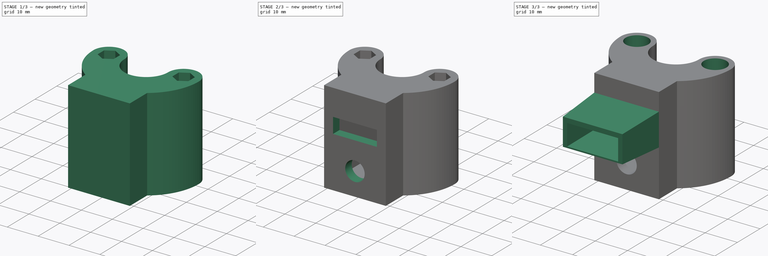
[diagram: build sequence overview — one tinted view per stage of 3, left to right]
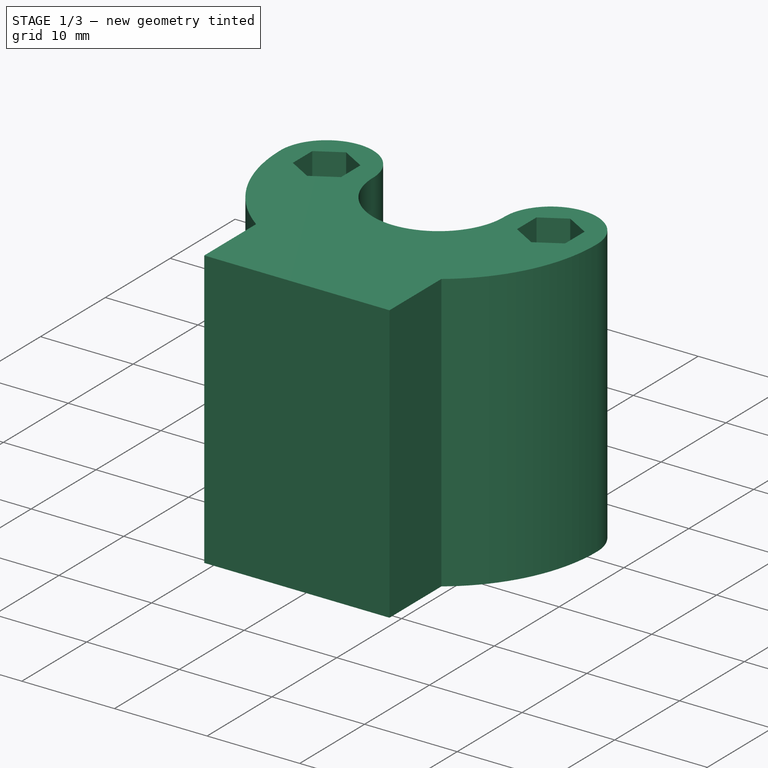
[diagram: stage 1 of 3 — iso view after this stage's code; geometry added in this stage tinted green]
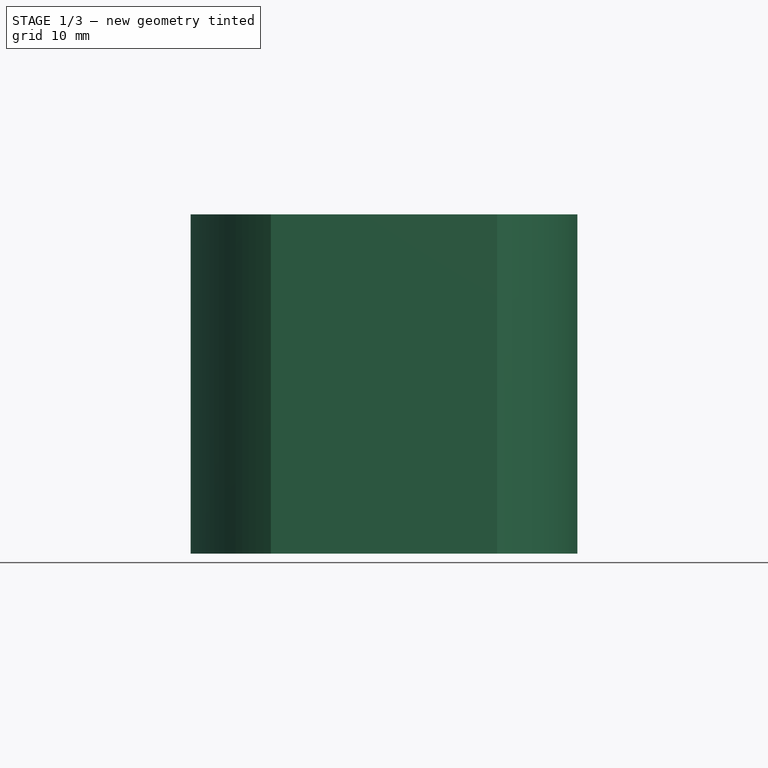
[diagram: stage 1 of 3 — front view after this stage's code; geometry added in this stage tinted green]
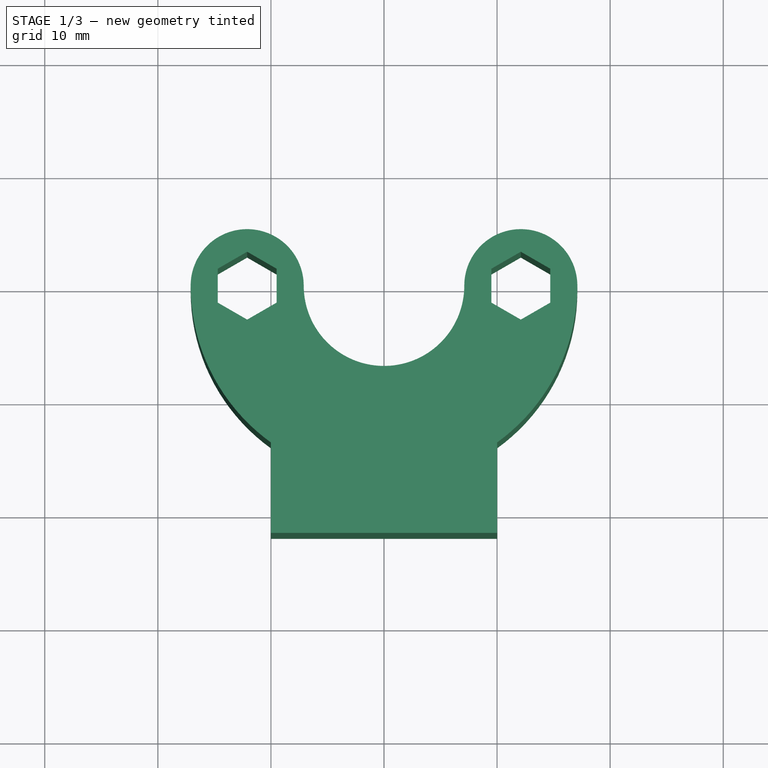
[diagram: stage 1 of 3 — top view after this stage's code; geometry added in this stage tinted green]
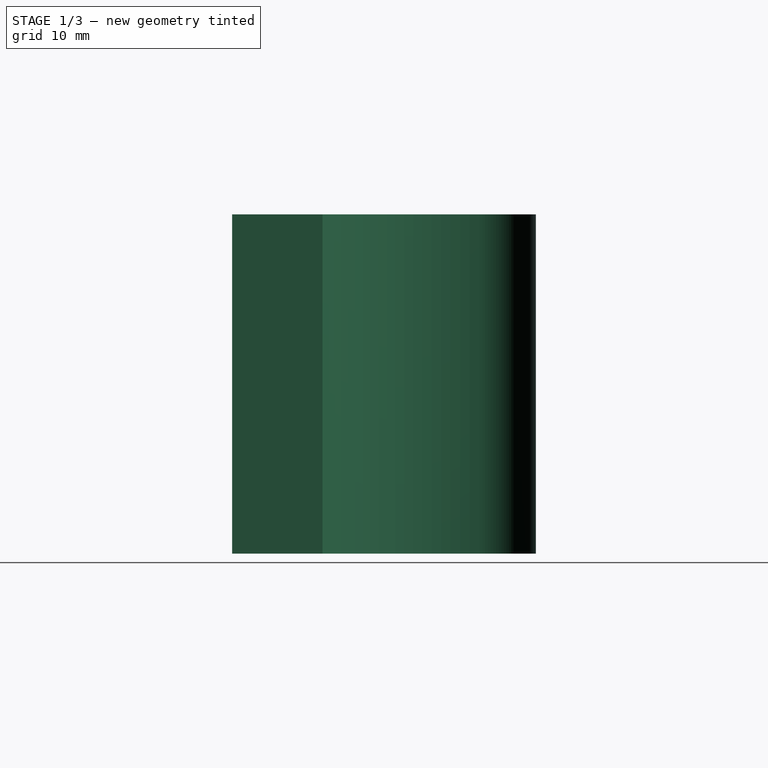
[diagram: stage 1 of 3 — right view after this stage's code; geometry added in this stage tinted green]
FCSTD DOCUMENT  (FreeCAD 0.20R29177 (Git))
Label: antenna_holder
License: All rights reserved
LicenseURL: http://en.wikipedia.org/wiki/All_rights_reserved
objects: Sketcher::SketchObject×6, PartDesign::Pocket×4, PartDesign::Pad×2, PartDesign::Plane×1, PartDesign::Body×1
note: 20 computed .brp shape members not serialized (recipe doc carries the construction recipe); baked Part::Feature solids carry a one-line shape summary decoded from their .brp

FEATURE [Sketcher::SketchObject] Sketch
  FullyConstrained = true
  MapMode = 5
  Support = -> [XY_Plane]
  sketch-geometry (22):
    g0: LineSegment StartX=-9.5 StartY=-1.50111 StartZ=0 EndX=-9.5 EndY=1.50111 EndZ=0
    g1: LineSegment StartX=-9.5 StartY=1.50111 StartZ=0 EndX=-12.1 EndY=3.00222 EndZ=0
    g2: LineSegment StartX=-12.1 StartY=3.00222 StartZ=0 EndX=-14.7 EndY=1.50111 EndZ=0
    g3: LineSegment StartX=-14.7 StartY=1.50111 StartZ=0 EndX=-14.7 EndY=-1.50111 EndZ=0
    g4: LineSegment StartX=-14.7 StartY=-1.50111 StartZ=0 EndX=-12.1 EndY=-3.00222 EndZ=0
    g5: LineSegment StartX=-12.1 StartY=-3.00222 StartZ=0 EndX=-9.5 EndY=-1.50111 EndZ=0
    g6: Circle CenterX=-12.1 CenterY=0 CenterZ=0 NormalX=0 NormalY=0 NormalZ=1 AngleXU=0 Radius=3.00222
    g7: LineSegment StartX=14.7 StartY=-1.50111 StartZ=0 EndX=14.7 EndY=1.50111 EndZ=0
    g8: LineSegment StartX=14.7 StartY=1.50111 StartZ=0 EndX=12.1 EndY=3.00222 EndZ=0
    g9: LineSegment StartX=12.1 StartY=3.00222 StartZ=0 EndX=9.5 EndY=1.50111 EndZ=0
    g10: LineSegment StartX=9.5 StartY=1.50111 StartZ=0 EndX=9.5 EndY=-1.50111 EndZ=0
    g11: LineSegment StartX=9.5 StartY=-1.50111 StartZ=0 EndX=12.1 EndY=-3.00222 EndZ=0
    g12: LineSegment StartX=12.1 StartY=-3.00222 StartZ=0 EndX=14.7 EndY=-1.50111 EndZ=0
    g13: Circle CenterX=12.1 CenterY=0 CenterZ=0 NormalX=0 NormalY=0 NormalZ=1 AngleXU=0 Radius=3.00222
    g14: ArcOfCircle CenterX=-12.1 CenterY=0 CenterZ=0 NormalX=0 NormalY=0 NormalZ=1 AngleXU=0 Radius=5 StartAngle=0 EndAngle=3.14159
    g15: ArcOfCircle CenterX=12.1 CenterY=0 CenterZ=0 NormalX=0 NormalY=0 NormalZ=1 AngleXU=0 Radius=5 StartAngle=0 EndAngle=3.14159
    g16: ArcOfCircle CenterX=0 CenterY=0 CenterZ=0 NormalX=0 NormalY=0 NormalZ=1 AngleXU=0 Radius=17.1 StartAngle=3.14159 EndAngle=4.08776
    g17: ArcOfCircle CenterX=0 CenterY=0 CenterZ=0 NormalX=0 NormalY=0 NormalZ=1 AngleXU=0 Radius=17.1 StartAngle=5.33702 EndAngle=6.28319
    g18: LineSegment StartX=-10 StartY=-13.8712 StartZ=0 EndX=-10 EndY=-21.8712 EndZ=0
    g19: LineSegment StartX=10 StartY=-13.8712 StartZ=0 EndX=10 EndY=-21.8712 EndZ=0
    g20: LineSegment StartX=-10 StartY=-21.8712 StartZ=0 EndX=10 EndY=-21.8712 EndZ=0
    g21: ArcOfCircle CenterX=0 CenterY=0 CenterZ=0 NormalX=0 NormalY=0 NormalZ=1 AngleXU=0 Radius=7.1 StartAngle=3.14159 EndAngle=6.28319
  constraints (57):
    c: Coincident(g0,g1)
    c: Coincident(g1,g2)
    c: Coincident(g2,g3)
    c: Coincident(g3,g4)
    c: Coincident(g4,g5)
    c: Coincident(g5,g0)
    c: Equal(g0, g1-g5) x5
    c: PointOnObject(g0,g6)
    c: PointOnObject(g1,g6)
    c: PointOnObject(g2,g6)
    c: PointOnObject(g3,g6)
    c: PointOnObject(g4,g6)
    c: PointOnObject(g5,g6)
    c: PointOnObject(g6,g-1)
    c: Coincident(g7,g8)
    c: Coincident(g8,g9)
    c: Coincident(g9,g10)
    c: Coincident(g10,g11)
    c: Coincident(g11,g12)
    c: Coincident(g12,g7)
    c: Equal(g7, g8-g12) x5
    c: PointOnObject(g7,g13)
    c: PointOnObject(g8,g13)
    c: PointOnObject(g9,g13)
    c: PointOnObject(g10,g13)
    c: PointOnObject(g11,g13)
    c: PointOnObject(g12,g13)
    c: Vertical(g10)
    c: Vertical(g0)
    c: Equal(g0,g10)
    c: DistanceX(g2,g0) = 5.2
    c: DistanceX(g6,g13) = 24.2
    c: Symmetric(g6,g13,g-2)
    c: Coincident(g14,g6)
    c: PointOnObject(g14,g-1)
    c: PointOnObject(g14,g-1)
    c: Coincident(g15,g13)
    c: PointOnObject(g15,g-1)
    c: PointOnObject(g15,g-1)
    c: Radius(g15) = 5
    c: Coincident(g16,g-1)
    c: Coincident(g16,g14)
    c: Coincident(g17,g16)
    c: Coincident(g17,g15)
    c: Symmetric(g16,g17,g-2)
    c: Coincident(g18,g16)
    c: Vertical(g18)
    c: Coincident(g19,g17)
    c: Vertical(g19)
    c: Coincident(g20,g18)
    c: Coincident(g20,g19)
    c: Horizontal(g20)
    c: DistanceX(g20,g20) = 20
    c: DistanceY(g19,g19) = 8
    c: Coincident(g21,g16)
    c: Coincident(g21,g14)
    c: Coincident(g21,g15)
FEATURE [PartDesign::Pad] Pad
  Direction = (0,0,1)
  Length = 30
  Length2 = 10
  Profile = -> Sketch
  ReferenceAxis = -> Sketch [N_Axis]
  Type = 0
FEATURE [PartDesign::Plane] DatumPlane
  AttachmentOffset = pos=(0,0,-22) rot=(0,0,1;0rad)
  Length = 60.4881
  MapMode = 5
  Placement = pos=(0,0.128807,-4.9e-15) rot=(1,0,0;1.5708rad)
  ResizeMode = 0
  Support = -> [Pad]
  Width = 65.4881
FEATURE [Sketcher::SketchObject] Sketch001
  ExternalGeometry = -> [Pad]
  FullyConstrained = true
  MapMode = 5
  Placement = pos=(0,0.128807,-4.9e-15) rot=(1,0,0;1.5708rad)
  Support = -> [DatumPlane]
  sketch-geometry (4):
    g0: LineSegment StartX=7.1 StartY=27 StartZ=0 EndX=-7.1 EndY=27 EndZ=0
    g1: LineSegment StartX=-7.1 StartY=27 StartZ=0 EndX=-7.1 EndY=3 EndZ=0
    g2: LineSegment StartX=-7.1 StartY=3 StartZ=0 EndX=7.1 EndY=3 EndZ=0
    g3: LineSegment StartX=7.1 StartY=3 StartZ=0 EndX=7.1 EndY=27 EndZ=0
  constraints (12):
    c: Coincident(g0,g1)
    c: Coincident(g1,g2)
    c: Coincident(g2,g3)
    c: Coincident(g3,g0)
    c: Horizontal(g0)
    c: Horizontal(g2)
    c: Vertical(g1)
    c: Vertical(g3)
    c: PointOnObject(g0,g-3)
    c: PointOnObject(g0,g-4)
    c: DistanceY(g-3,g1) = 3
    c: DistanceY(g0,g-3) = 3
FEATURE [PartDesign::Pocket] Pocket
  BaseFeature = -> Pad
  Direction = (0,1,-2e-16)
  Length = 19
  Length2 = 5
  Profile = -> Sketch001
  ReferenceAxis = -> Sketch001 [N_Axis]
  Reversed = true
  Type = 0
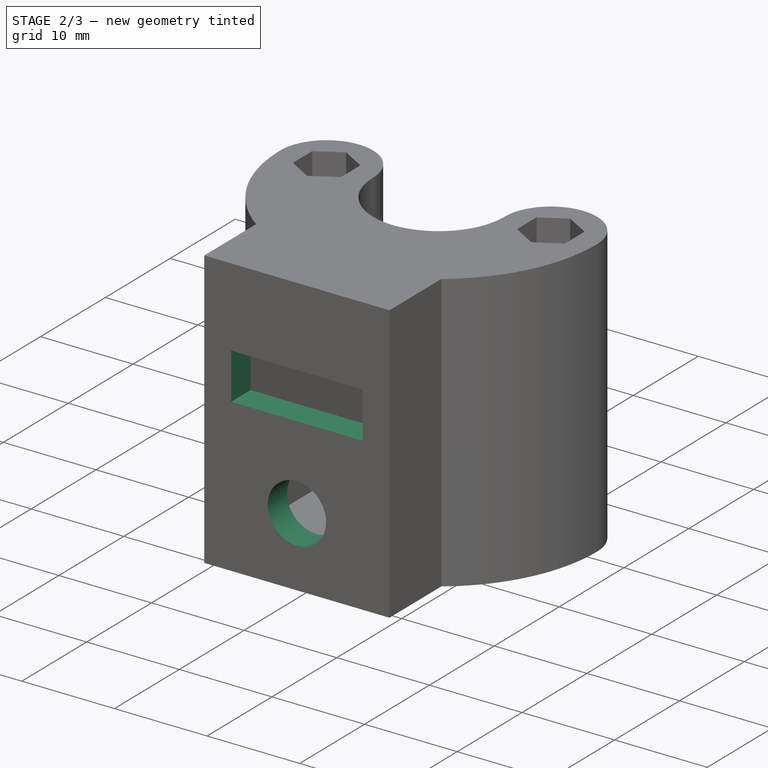
[diagram: stage 2 of 3 — iso view after this stage's code; geometry added in this stage tinted green]
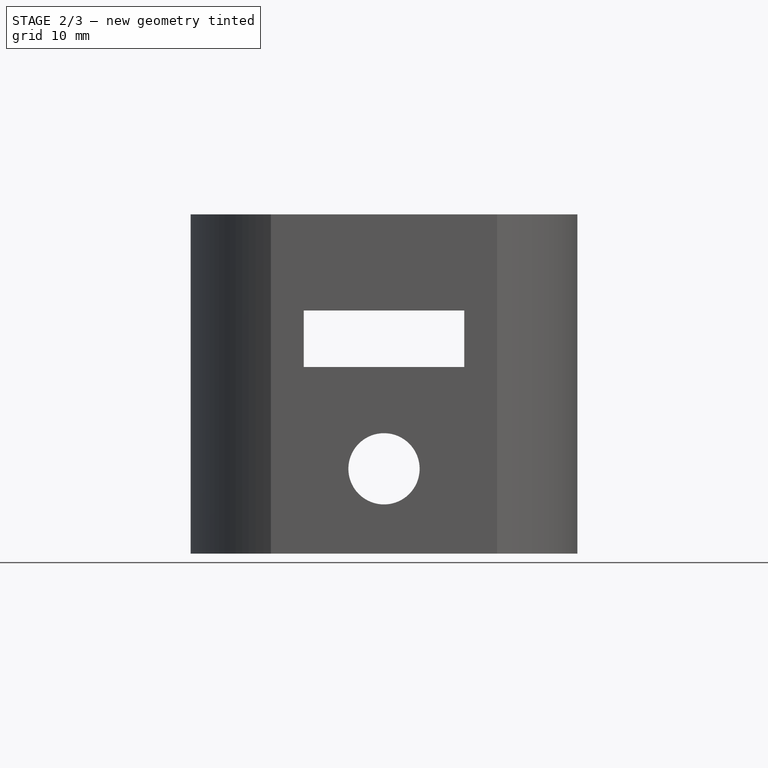
[diagram: stage 2 of 3 — front view after this stage's code; geometry added in this stage tinted green]
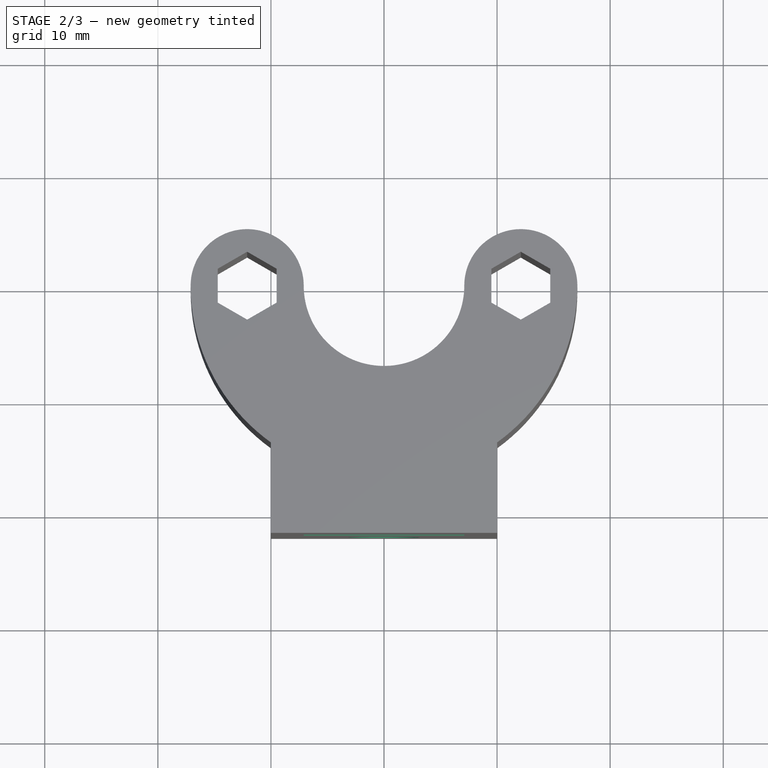
[diagram: stage 2 of 3 — top view after this stage's code; geometry added in this stage tinted green]
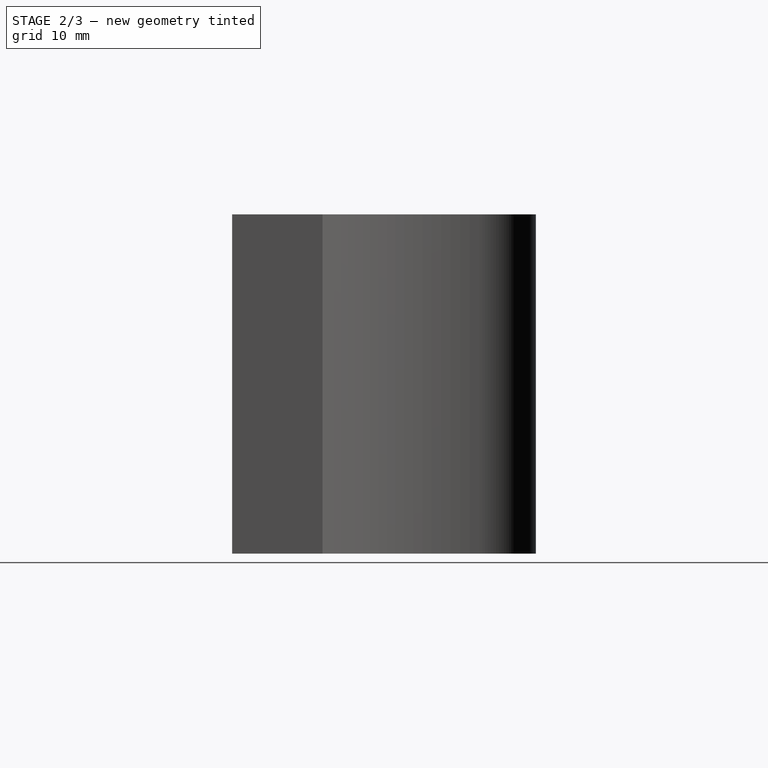
[diagram: stage 2 of 3 — right view after this stage's code; geometry added in this stage tinted green]
FEATURE [Sketcher::SketchObject] Sketch002
  FullyConstrained = true
  MapMode = 5
  Placement = pos=(0,-21.8712,0) rot=(1,0,0;1.5708rad)
  Support = -> [Pocket]
  sketch-geometry (1):
    g0: Circle CenterX=0 CenterY=7.5 CenterZ=0 NormalX=0 NormalY=0 NormalZ=1 AngleXU=0 Radius=3.15
  constraints (3):
    c: PointOnObject(g0,g-2)
    c: Diameter(g0) = 6.3
    c: DistanceY(g-1,g0) = 7.5
FEATURE [PartDesign::Pocket] Pocket001
  BaseFeature = -> Pocket
  Direction = (0,1,-2e-16)
  Length = 5
  Length2 = 5
  Profile = -> Sketch002
  ReferenceAxis = -> Sketch002 [N_Axis]
  Type = 0
FEATURE [Sketcher::SketchObject] Sketch003
  ExternalGeometry = -> [Pocket001]
  FullyConstrained = true
  MapMode = 5
  Placement = pos=(0,-18.8712,4.2e-15) rot=(0,0.707107,0.707107;3.14159rad)
  Support = -> [Pocket001]
  sketch-geometry (4):
    g0: LineSegment StartX=-7.1 StartY=21.5 StartZ=0 EndX=7.1 EndY=21.5 EndZ=0
    g1: LineSegment StartX=7.1 StartY=21.5 StartZ=0 EndX=7.1 EndY=16.5 EndZ=0
    g2: LineSegment StartX=7.1 StartY=16.5 StartZ=0 EndX=-7.1 EndY=16.5 EndZ=0
    g3: LineSegment StartX=-7.1 StartY=16.5 StartZ=0 EndX=-7.1 EndY=21.5 EndZ=0
  constraints (11):
    c: Coincident(g0,g1)
    c: Coincident(g1,g2)
    c: Coincident(g2,g3)
    c: Coincident(g3,g0)
    c: Horizontal(g0)
    c: Vertical(g1)
    c: Vertical(g3)
    c: Symmetric(g2,g1,g-2)
    c: PointOnObject(g0,g-3)
    c: DistanceY(g1,g1) = 5
    c: DistanceY(g0,g-4) = 5.5
FEATURE [PartDesign::Pocket] Pocket002
  BaseFeature = -> Pocket001
  Direction = (0,-1,2e-16)
  Length = 5
  Length2 = 5
  Profile = -> Sketch003
  ReferenceAxis = -> Sketch003 [N_Axis]
  Type = 0
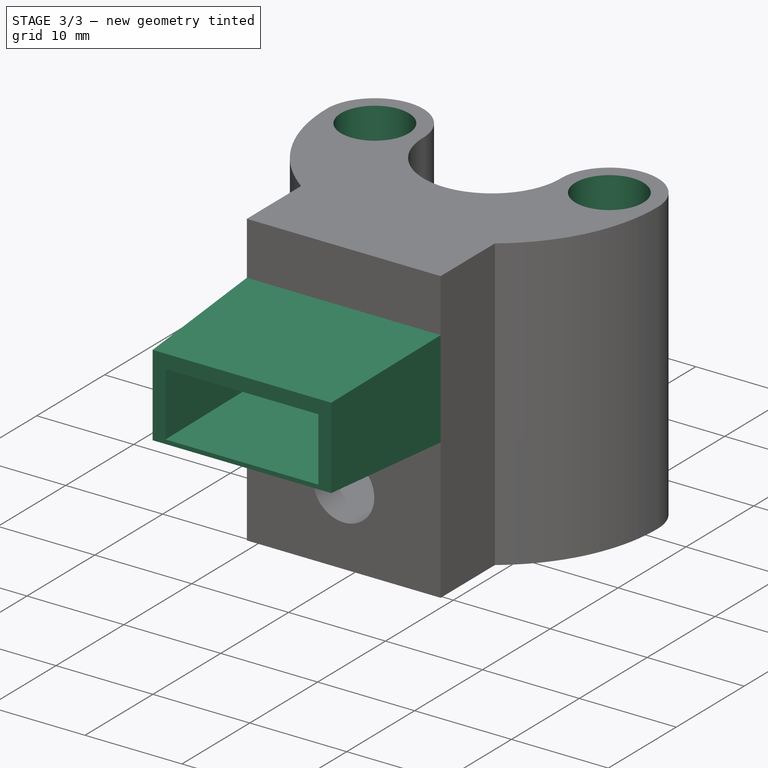
[diagram: stage 3 of 3 — iso view after this stage's code; geometry added in this stage tinted green]
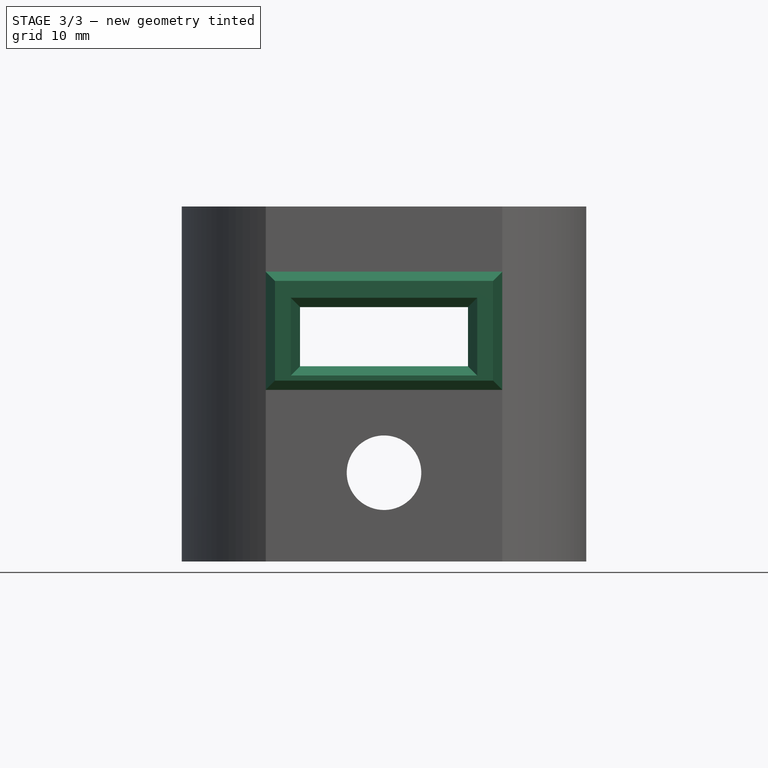
[diagram: stage 3 of 3 — front view after this stage's code; geometry added in this stage tinted green]
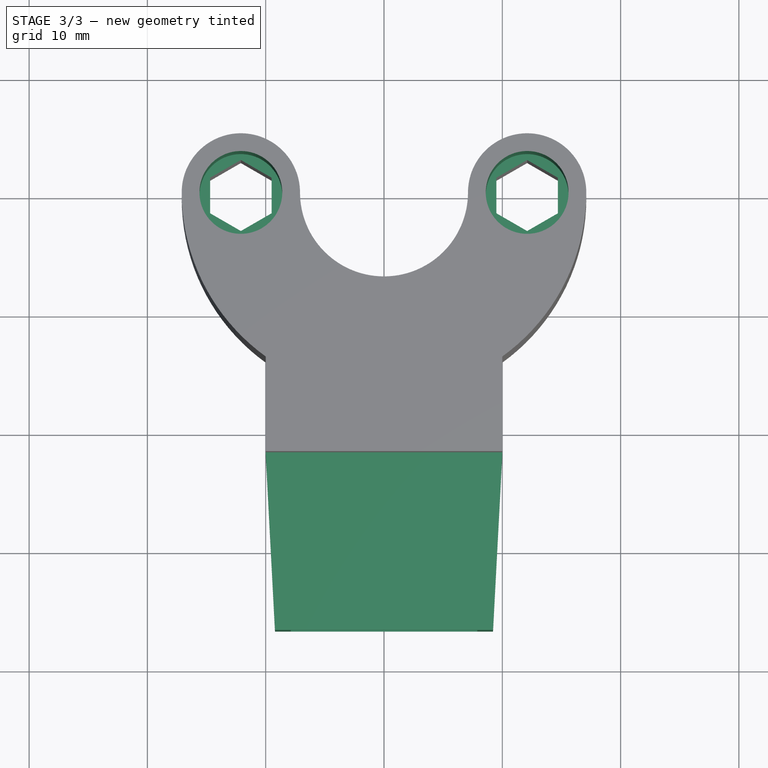
[diagram: stage 3 of 3 — top view after this stage's code; geometry added in this stage tinted green]
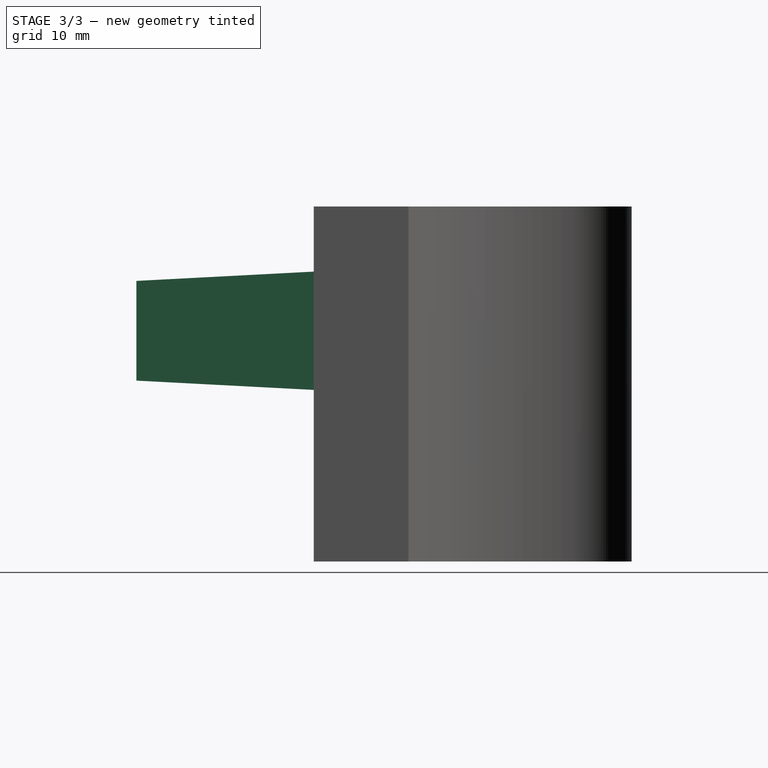
[diagram: stage 3 of 3 — right view after this stage's code; geometry added in this stage tinted green]
FEATURE [Sketcher::SketchObject] Sketch004
  ExternalGeometry = -> [Pocket002]
  FullyConstrained = true
  MapMode = 5
  Placement = pos=(0,-21.8712,0) rot=(1,0,0;1.5708rad)
  Support = -> [Pocket002]
  sketch-geometry (8):
    g0: LineSegment StartX=-10 StartY=24.5 StartZ=0 EndX=10 EndY=24.5 EndZ=0
    g1: LineSegment StartX=10 StartY=24.5 StartZ=0 EndX=10 EndY=14.5 EndZ=0
    g2: LineSegment StartX=10 StartY=14.5 StartZ=0 EndX=-10 EndY=14.5 EndZ=0
    g3: LineSegment StartX=-10 StartY=14.5 StartZ=0 EndX=-10 EndY=24.5 EndZ=0
    g4: LineSegment StartX=-7.1 StartY=21.5 StartZ=0 EndX=7.1 EndY=21.5 EndZ=0
    g5: LineSegment StartX=7.1 StartY=21.5 StartZ=0 EndX=7.1 EndY=16.5 EndZ=0
    g6: LineSegment StartX=7.1 StartY=16.5 StartZ=0 EndX=-7.1 EndY=16.5 EndZ=0
    g7: LineSegment StartX=-7.1 StartY=16.5 StartZ=0 EndX=-7.1 EndY=21.5 EndZ=0
  constraints (22):
    c: Coincident(g0,g1)
    c: Coincident(g1,g2)
    c: Coincident(g2,g3)
    c: Coincident(g3,g0)
    c: Horizontal(g0)
    c: Horizontal(g2)
    c: Vertical(g1)
    c: Vertical(g3)
    c: PointOnObject(g0,g-8)
    c: PointOnObject(g0,g-7)
    c: DistanceY(g-5,g0) = 3
    c: DistanceY(g2,g-6) = 2
    c: Coincident(g4,g5)
    c: Coincident(g5,g6)
    c: Coincident(g6,g7)
    c: Coincident(g7,g4)
    c: Horizontal(g4)
    c: Horizontal(g6)
    c: Vertical(g5)
    c: Vertical(g7)
    c: Coincident(g4,g-5)
    c: Coincident(g5,g-6)
FEATURE [PartDesign::Pad] Pad001
  BaseFeature = -> Pocket002
  Direction = (0,-1,2e-16)
  Length = 15
  Length2 = 10
  Profile = -> Sketch004
  ReferenceAxis = -> Sketch004 [N_Axis]
  TaperAngle = -3
  Type = 0
FEATURE [Sketcher::SketchObject] Sketch005
  FullyConstrained = true
  MapMode = 5
  Placement = pos=(0,0,30) rot=(0,0,1;0rad)
  Support = -> [Pad001]
  sketch-geometry (2):
    g0: Circle CenterX=-12.1 CenterY=0 CenterZ=0 NormalX=0 NormalY=0 NormalZ=1 AngleXU=0 Radius=3.5
    g1: Circle CenterX=12.1 CenterY=0 CenterZ=0 NormalX=0 NormalY=0 NormalZ=1 AngleXU=0 Radius=3.5
  constraints (5):
    c: PointOnObject(g0,g-1)
    c: Symmetric(g1,g0,g-2)
    c: DistanceX(g0,g1) = 24.2
    c: Equal(g0,g1)
    c: Diameter(g1) = 7
FEATURE [PartDesign::Pocket] Pocket003
  BaseFeature = -> Pad001
  Direction = (0,0,-1)
  Length = 15
  Length2 = 5
  Profile = -> Sketch005
  ReferenceAxis = -> Sketch005 [N_Axis]
  Type = 0
FEATURE [PartDesign::Body] Body
  Group = -> [Sketch,Pad,DatumPlane,Sketch001,Pocket,Sketch002,Pocket001,Sketch003,Pocket002,Sketch004,Pad001,Sketch005,Pocket003]
  Origin = -> Origin
  Tip = -> Pocket003
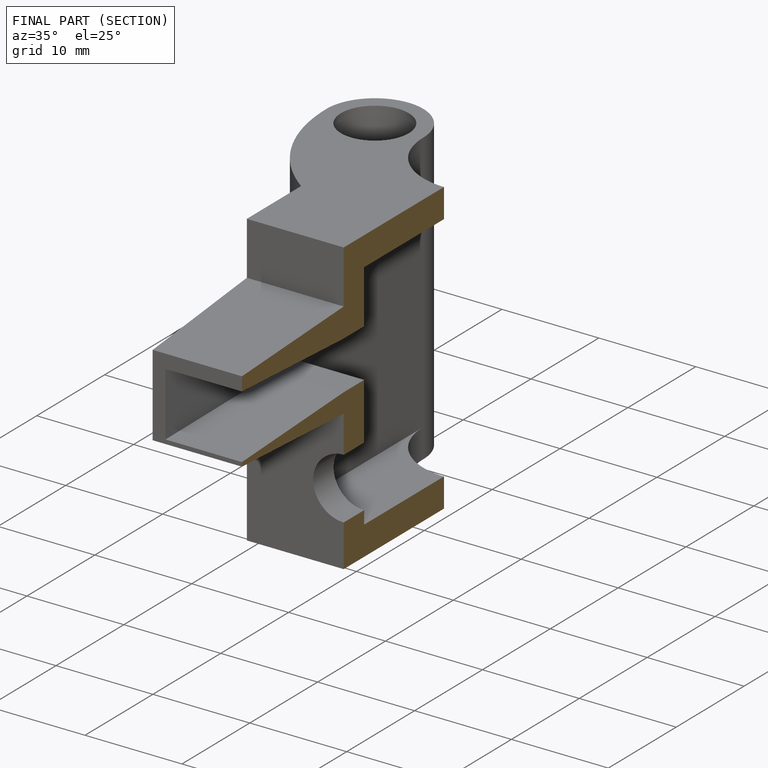
[diagram: finished part — half-section view (interior)]
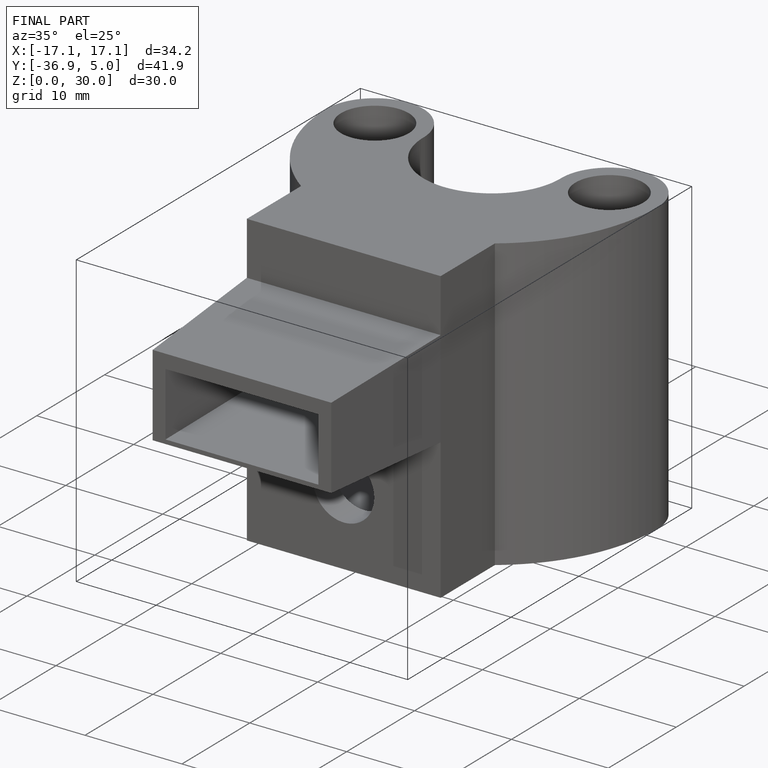
[diagram: finished part — iso view with bounding-box wireframe]
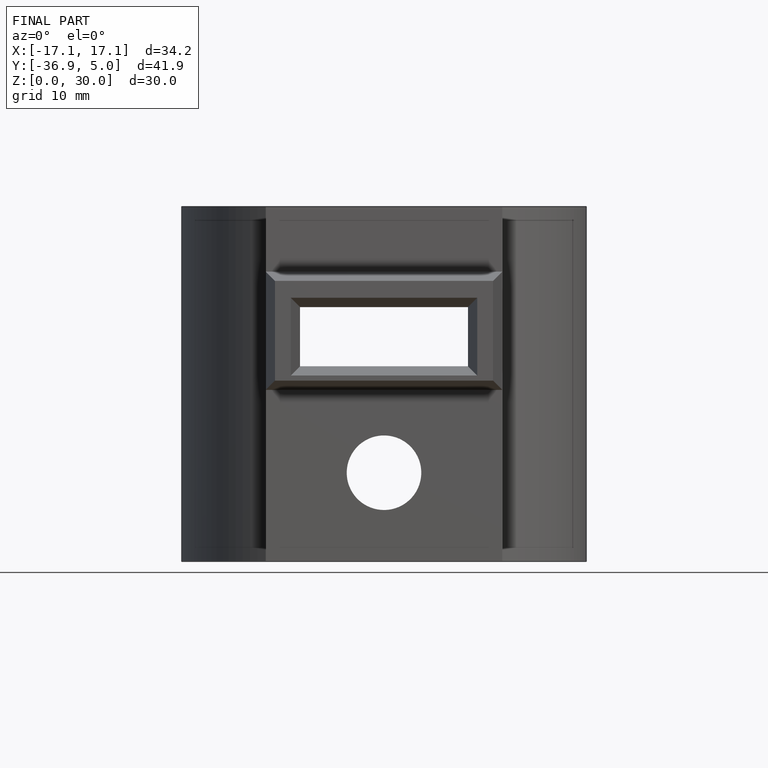
[diagram: finished part — front view with bounding-box wireframe]
